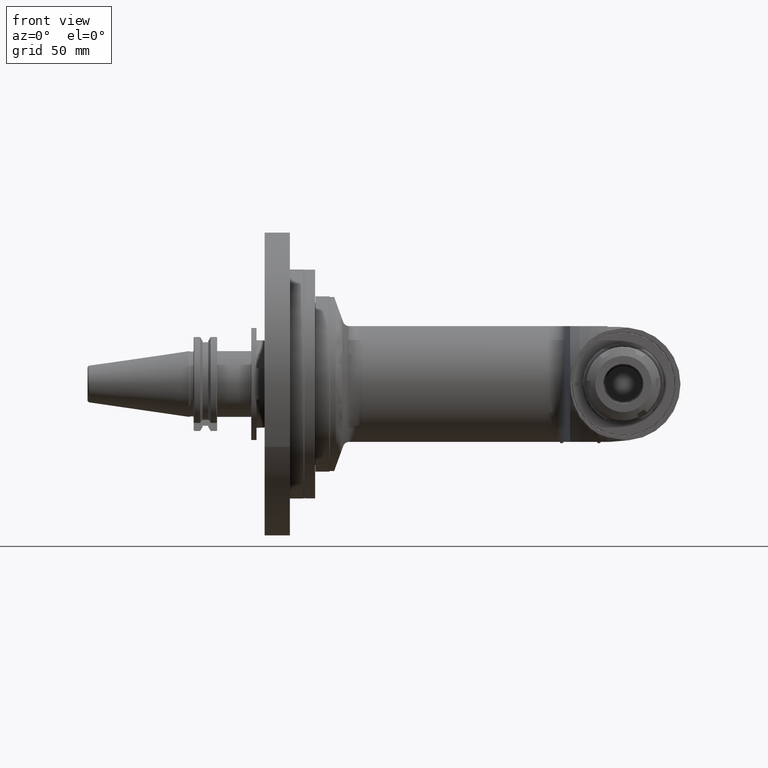
[diagram: clean part render]
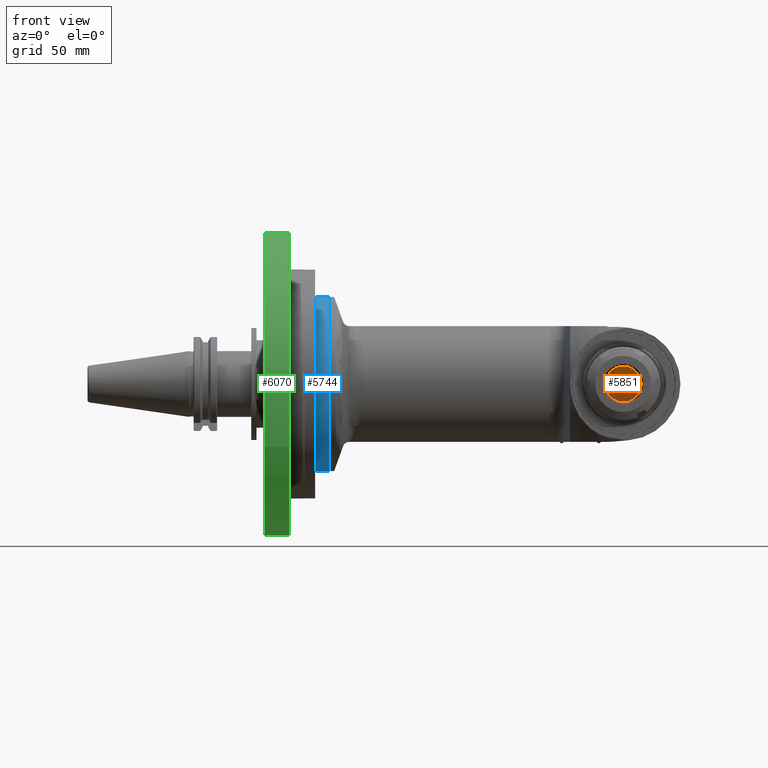
[diagram: same view with three faces highlighted in distinct colors, each labeled with its STEP entity id]
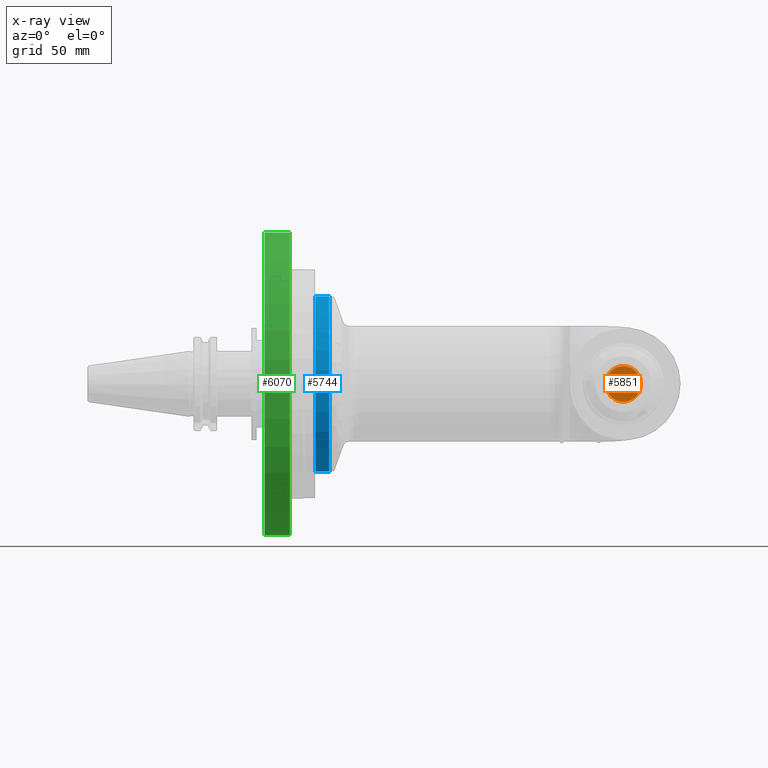
[diagram: x-ray of the same camera — body ghosted, the three highlighted faces saturated]
A machine part, front view with three faces highlighted in distinct colors.
The next image is the same camera in x-ray (body ghosted, the three faces saturated) — at least one of them is partly hidden behind the body in this view.
Their STEP definitions:

[orange] entity #5851 — the highlighted planar face has unit normal (0, -1, 0).
#615=FACE_OUTER_BOUND('',#1004,.T.);
#1004=EDGE_LOOP('',(#4511));
#1458=CIRCLE('',#6445,12.);
#2610=VERTEX_POINT('',#10039);
#3302=EDGE_CURVE('',#2610,#2610,#1458,.T.);
#4511=ORIENTED_EDGE('',*,*,#3302,.T.);
#5605=PLANE('',#6446);
#5851=ADVANCED_FACE('',(#615),#5605,.T.);
#6445=AXIS2_PLACEMENT_3D('',#10040,#7568,#7569);
#6446=AXIS2_PLACEMENT_3D('',#10042,#7571,#7572);
#7568=DIRECTION('center_axis',(0.,-1.,0.));
#7569=DIRECTION('ref_axis',(1.,0.,0.));
#7571=DIRECTION('center_axis',(0.,-1.,0.));
#7572=DIRECTION('ref_axis',(1.,0.,0.));
#10039=CARTESIAN_POINT('',(-12.,-44.,-5.89548395379E-14));
#10040=CARTESIAN_POINT('Origin',(0.,-44.,-6.382480582107E-14));
#10042=CARTESIAN_POINT('Origin',(-6.,-44.,-6.212514415178E-14));

[blue] entity #5744 — the highlighted cylindrical surface (bore or boss wall) has radius 59 mm, axis along (1, 0, 0).
#70=CYLINDRICAL_SURFACE('',#6221,59.);
#508=FACE_OUTER_BOUND('',#880,.T.);
#880=EDGE_LOOP('',(#3968,#3969,#3970,#3971,#3972));
#1354=CIRCLE('',#6219,59.);
#1355=CIRCLE('',#6220,59.);
#1356=CIRCLE('',#6222,59.);
#1697=LINE('',#9260,#2041);
#2041=VECTOR('',#7047,59.);
#2446=VERTEX_POINT('',#9253);
#2447=VERTEX_POINT('',#9254);
#2448=VERTEX_POINT('',#9259);
#3043=EDGE_CURVE('',#2446,#2447,#1354,.T.);
#3045=EDGE_CURVE('',#2447,#2446,#1355,.T.);
#3046=EDGE_CURVE('',#2446,#2448,#1697,.T.);
#3047=EDGE_CURVE('',#2448,#2448,#1356,.T.);
#3968=ORIENTED_EDGE('',*,*,#3043,.F.);
#3969=ORIENTED_EDGE('',*,*,#3046,.T.);
#3970=ORIENTED_EDGE('',*,*,#3047,.F.);
#3971=ORIENTED_EDGE('',*,*,#3046,.F.);
#3972=ORIENTED_EDGE('',*,*,#3045,.F.);
#5744=ADVANCED_FACE('',(#508),#70,.T.);
#6219=AXIS2_PLACEMENT_3D('',#9255,#7040,#7041);
#6220=AXIS2_PLACEMENT_3D('',#9257,#7043,#7044);
#6221=AXIS2_PLACEMENT_3D('',#9258,#7045,#7046);
#6222=AXIS2_PLACEMENT_3D('',#9261,#7048,#7049);
#7040=DIRECTION('center_axis',(1.,0.,0.));
#7041=DIRECTION('ref_axis',(0.,0.996194698091745,0.087155742747664));
#7043=DIRECTION('center_axis',(1.,0.,0.));
#7044=DIRECTION('ref_axis',(0.,0.996194698091745,0.087155742747664));
#7045=DIRECTION('center_axis',(1.,0.,0.));
#7046=DIRECTION('ref_axis',(0.,-0.996194698091745,-0.087155742747664));
#7047=DIRECTION('',(-1.,0.,0.));
#7048=DIRECTION('center_axis',(-1.,0.,0.));
#7049=DIRECTION('ref_axis',(0.,0.996194698091745,0.087155742747664));
#9253=CARTESIAN_POINT('',(-198.,58.775487187413,5.14218882211218));
#9254=CARTESIAN_POINT('',(-198.,-58.775487187413,-5.14218882211216));
#9255=CARTESIAN_POINT('Origin',(-198.,0.,0.));
#9257=CARTESIAN_POINT('Origin',(-198.,0.,0.));
#9258=CARTESIAN_POINT('Origin',(-202.4,0.,0.));
#9259=CARTESIAN_POINT('',(-207.3,58.77548718741,5.142188822112));
#9260=CARTESIAN_POINT('',(-202.4,58.775487187413,5.14218882211218));
#9261=CARTESIAN_POINT('Origin',(-207.3,0.,0.));

[green] entity #6070 — the highlighted cylindrical surface (bore or boss wall) has radius 102 mm, axis along (-1, 0, 0).
#162=CYLINDRICAL_SURFACE('',#6854,102.);
#834=FACE_OUTER_BOUND('',#1280,.T.);
#1280=EDGE_LOOP('',(#5451,#5452,#5453,#5454));
#1644=CIRCLE('',#6852,102.);
#1646=CIRCLE('',#6855,102.);
#1990=LINE('',#11237,#2334);
#2334=VECTOR('',#8608,102.);
#2902=VERTEX_POINT('',#11230);
#2904=VERTEX_POINT('',#11235);
#3757=EDGE_CURVE('',#2902,#2902,#1644,.T.);
#3759=EDGE_CURVE('',#2904,#2904,#1646,.T.);
#3760=EDGE_CURVE('',#2904,#2902,#1990,.T.);
#5451=ORIENTED_EDGE('',*,*,#3759,.T.);
#5452=ORIENTED_EDGE('',*,*,#3760,.T.);
#5453=ORIENTED_EDGE('',*,*,#3757,.F.);
#5454=ORIENTED_EDGE('',*,*,#3760,.F.);
#6070=ADVANCED_FACE('',(#834),#162,.T.);
#6852=AXIS2_PLACEMENT_3D('',#11231,#8600,#8601);
#6854=AXIS2_PLACEMENT_3D('',#11234,#8604,#8605);
#6855=AXIS2_PLACEMENT_3D('',#11236,#8606,#8607);
#8600=DIRECTION('center_axis',(1.,0.,0.));
#8601=DIRECTION('ref_axis',(0.,1.,0.));
#8604=DIRECTION('center_axis',(-1.,0.,0.));
#8605=DIRECTION('ref_axis',(0.,1.,0.));
#8606=DIRECTION('center_axis',(1.,0.,0.));
#8607=DIRECTION('ref_axis',(0.,1.,0.));
#8608=DIRECTION('',(1.,0.,0.));
#11230=CARTESIAN_POINT('',(31.,-102.,-1.50990331349E-14));
#11231=CARTESIAN_POINT('Origin',(31.,0.,0.));
#11234=CARTESIAN_POINT('Origin',(303.1531853339,0.,0.));
#11235=CARTESIAN_POINT('',(14.,-102.,-1.50990331349E-14));
#11236=CARTESIAN_POINT('Origin',(14.,0.,0.));
#11237=CARTESIAN_POINT('',(303.1531853339,-102.,1.2491397351303E-14));